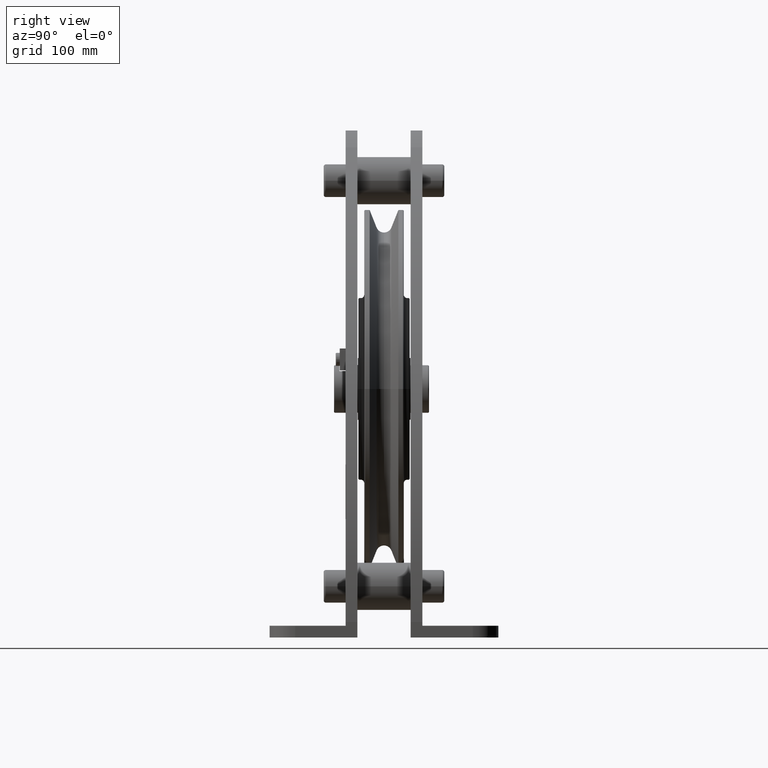
[diagram: clean part render]
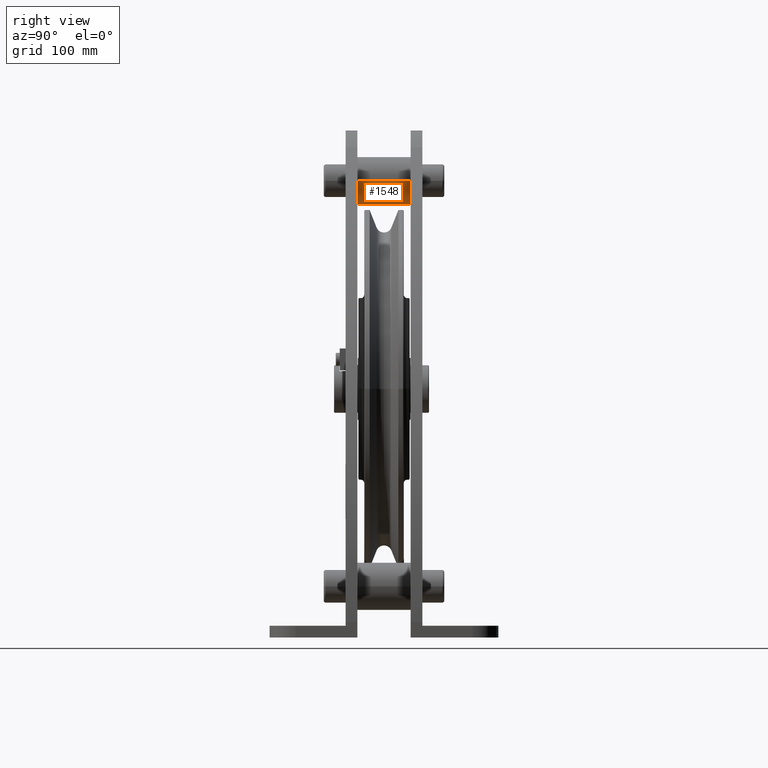
[diagram: same view with one face highlighted and labeled with its STEP entity id]
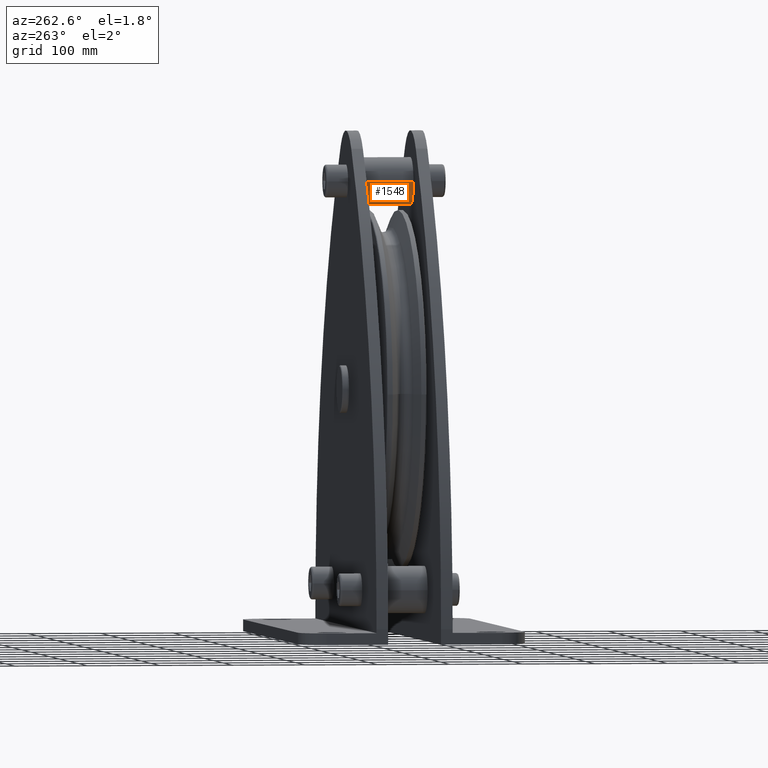
[diagram: same view with one face highlighted and labeled with its STEP entity id]
A machine part, right view. The second image highlights one B-rep face of the part: STEP entity #1548.
A second angle (auxiliary view) of the same face is appended — the face is thin or edge-on in the first view.
In plain terms, the highlighted cylindrical surface (edge-blend (fillet) strip) has radius 32.5 mm, axis along (0, -1, 0).
Its self-contained STEP definition (entity closure, byte-faithful):
#1548=ADVANCED_FACE('',(#3347),#3348,.T.);
#3347=FACE_OUTER_BOUND('',#5379,.T.);
#3348=CYLINDRICAL_SURFACE('',#5380,32.5);
#5379=EDGE_LOOP('',(#10265,#10266,#10267,#10268));
#5380=AXIS2_PLACEMENT_3D('',#10269,#10270,#10271);
#10265=ORIENTED_EDGE('',*,*,#12548,.T.);
#10266=ORIENTED_EDGE('',*,*,#13856,.F.);
#10267=ORIENTED_EDGE('',*,*,#12550,.T.);
#10268=ORIENTED_EDGE('',*,*,#13785,.F.);
#10269=CARTESIAN_POINT('',(0.0,0.0,285.0));
#10270=DIRECTION('',(0.0,-1.0,0.0));
#10271=DIRECTION('',(1.0,0.0,0.0));
#12548=EDGE_CURVE('',#15258,#15259,#15260,.T.);
#12550=EDGE_CURVE('',#15263,#15261,#15264,.T.);
#13785=EDGE_CURVE('',#15258,#15261,#17102,.T.);
#13856=EDGE_CURVE('',#15263,#15259,#17203,.T.);
#15258=VERTEX_POINT('',#22120);
#15259=VERTEX_POINT('',#22121);
#15260=LINE('',#22122,#22123);
#15261=VERTEX_POINT('',#22124);
#15263=VERTEX_POINT('',#22126);
#15264=LINE('',#22127,#22128);
#17102=CIRCLE('',#24626,32.5);
#17203=CIRCLE('',#24760,32.5);
#22120=CARTESIAN_POINT('',(32.5,36.5,285.0));
#22121=CARTESIAN_POINT('',(32.5,-36.5,285.0));
#22122=CARTESIAN_POINT('',(32.5,0.0,285.0));
#22123=VECTOR('',#27483,1.0);
#22124=CARTESIAN_POINT('',(-32.5,36.5,285.0));
#22126=CARTESIAN_POINT('',(-32.5,-36.5,285.0));
#22127=CARTESIAN_POINT('',(-32.5,0.0,285.0));
#22128=VECTOR('',#27487,1.0);
#24626=AXIS2_PLACEMENT_3D('',#28892,#28893,#28894);
#24760=AXIS2_PLACEMENT_3D('',#28982,#28983,#28984);
#27483=DIRECTION('',(0.0,-1.0,0.0));
#27487=DIRECTION('',(-0.0,1.0,-0.0));
#28892=CARTESIAN_POINT('',(0.0,36.5,285.0));
#28893=DIRECTION('',(-0.0,1.0,0.0));
#28894=DIRECTION('',(1.0,0.0,0.0));
#28982=CARTESIAN_POINT('',(0.0,-36.5,285.0));
#28983=DIRECTION('',(0.0,-1.0,0.0));
#28984=DIRECTION('',(1.0,0.0,0.0));